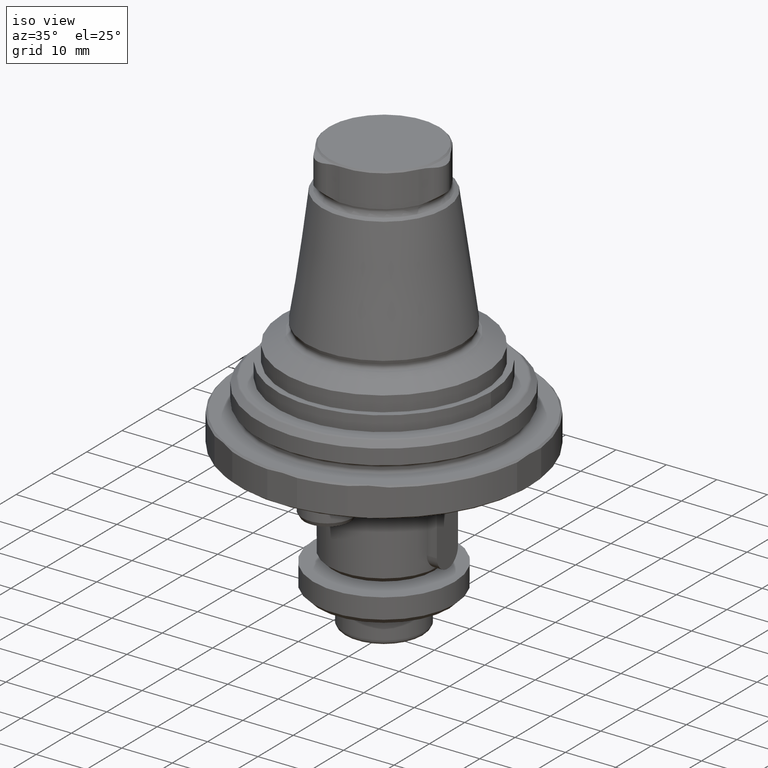
[diagram: clean part render]
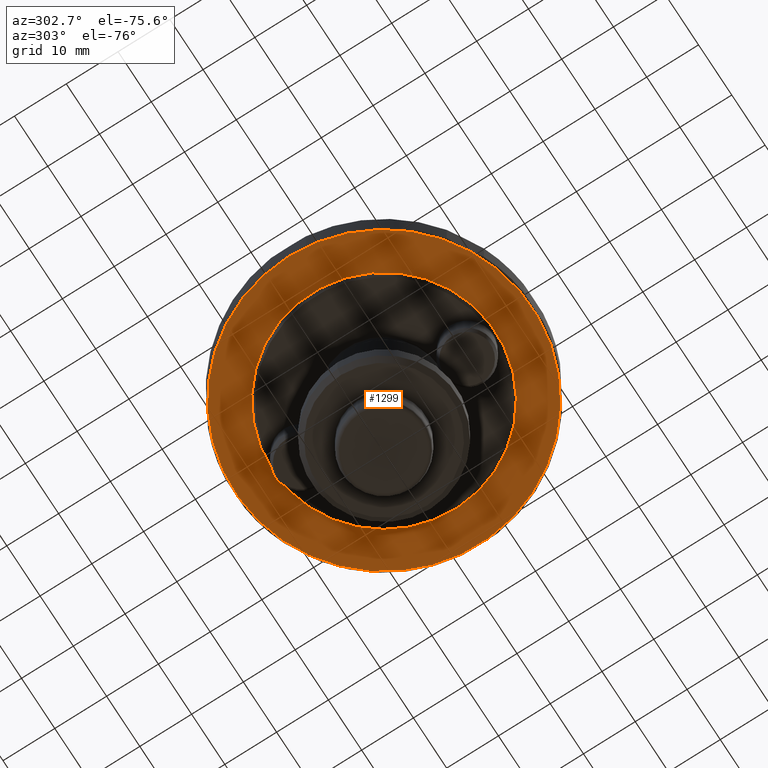
[diagram: tour spotlight — one face highlighted and labeled with its STEP entity id]
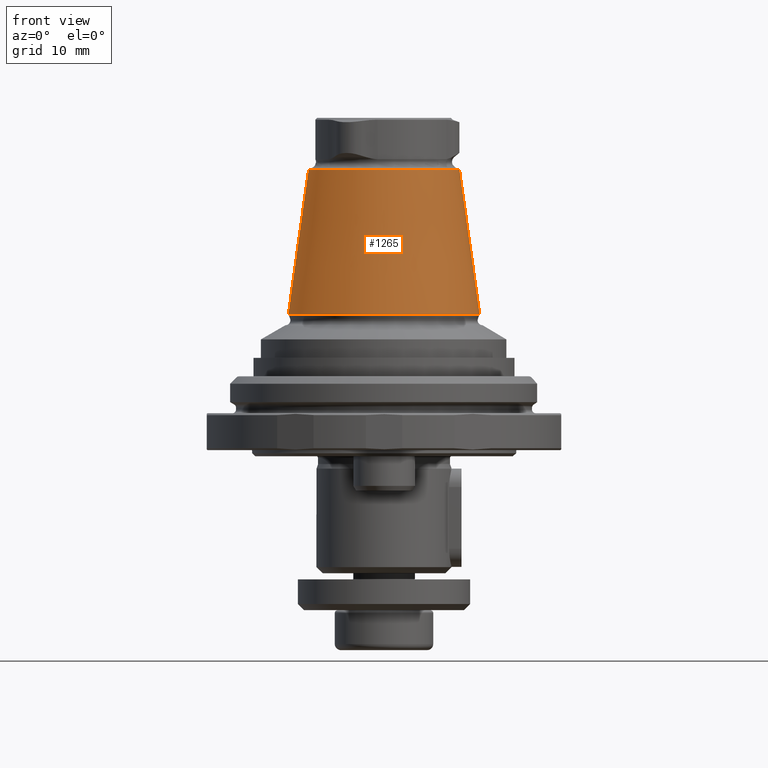
[diagram: tour spotlight — one face highlighted and labeled with its STEP entity id]
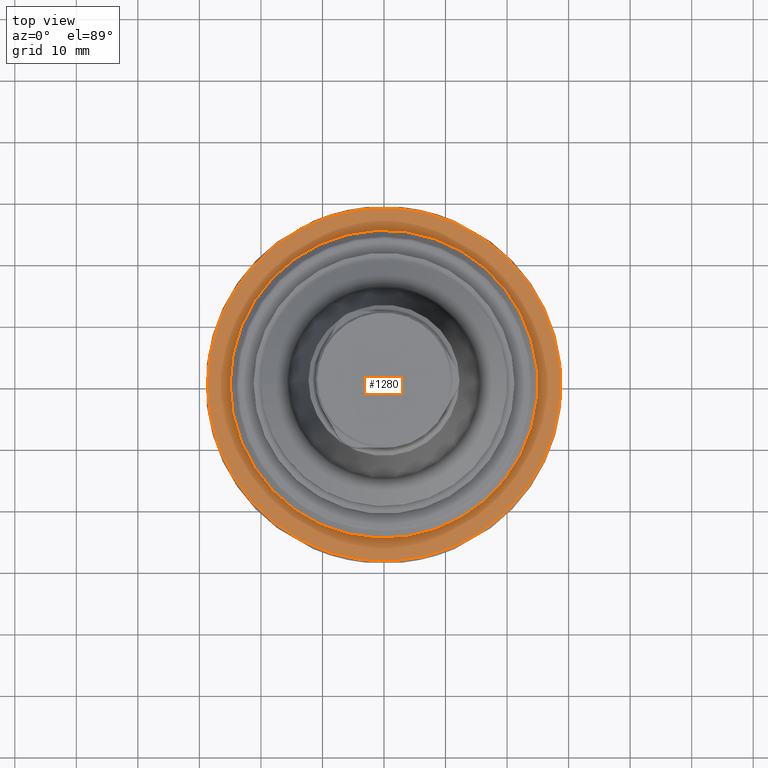
[diagram: tour spotlight — one face highlighted and labeled with its STEP entity id]
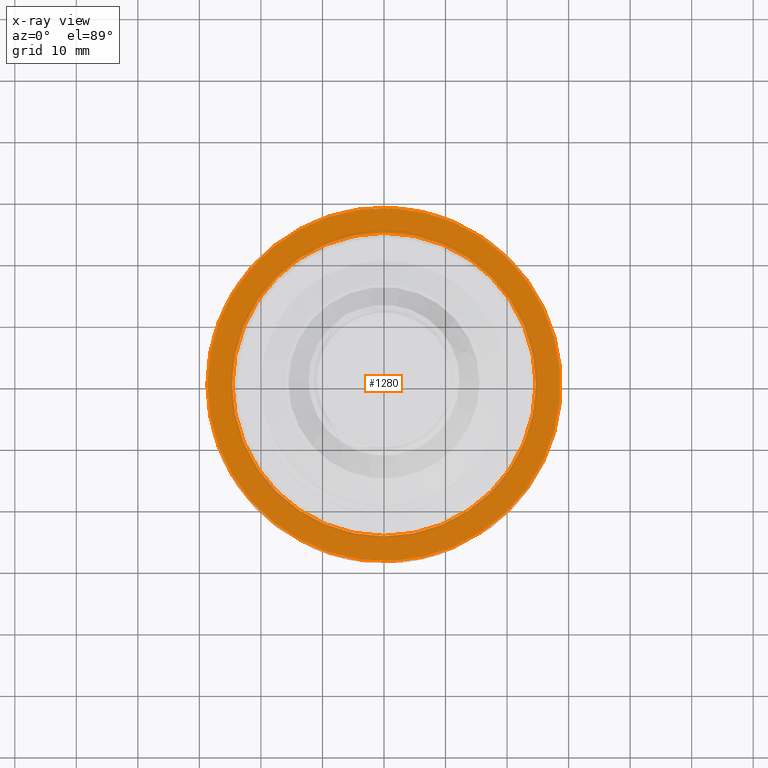
[diagram: x-ray of the same camera — body ghosted, this tour face saturated]
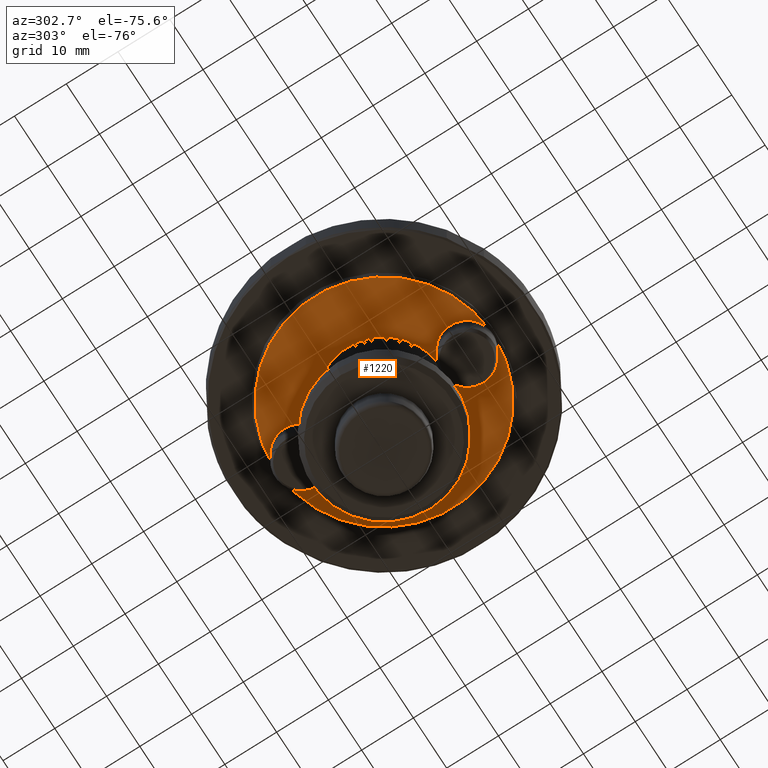
[diagram: tour spotlight — one face highlighted and labeled with its STEP entity id]
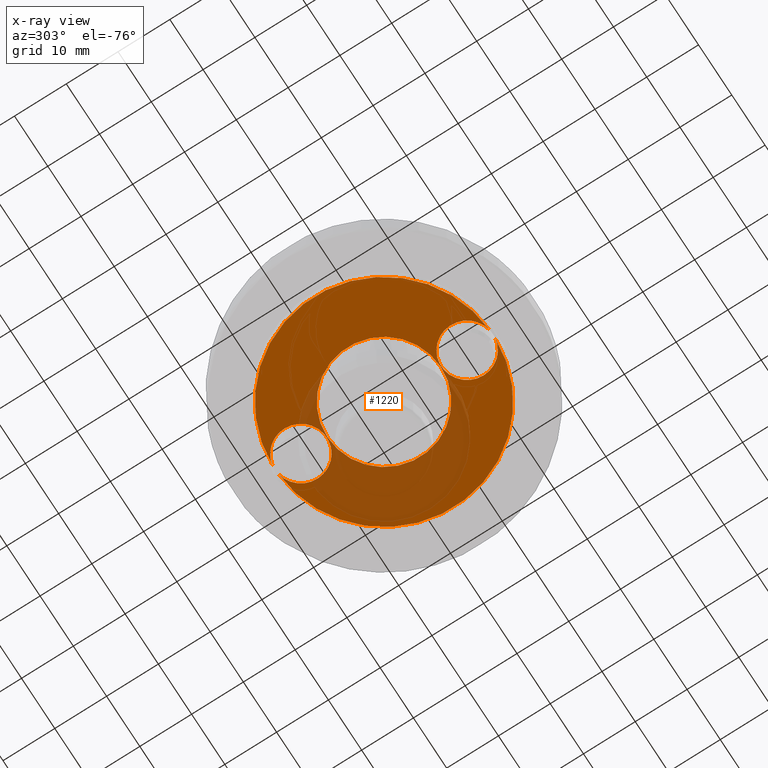
[diagram: x-ray of the same camera — body ghosted, this tour face saturated]
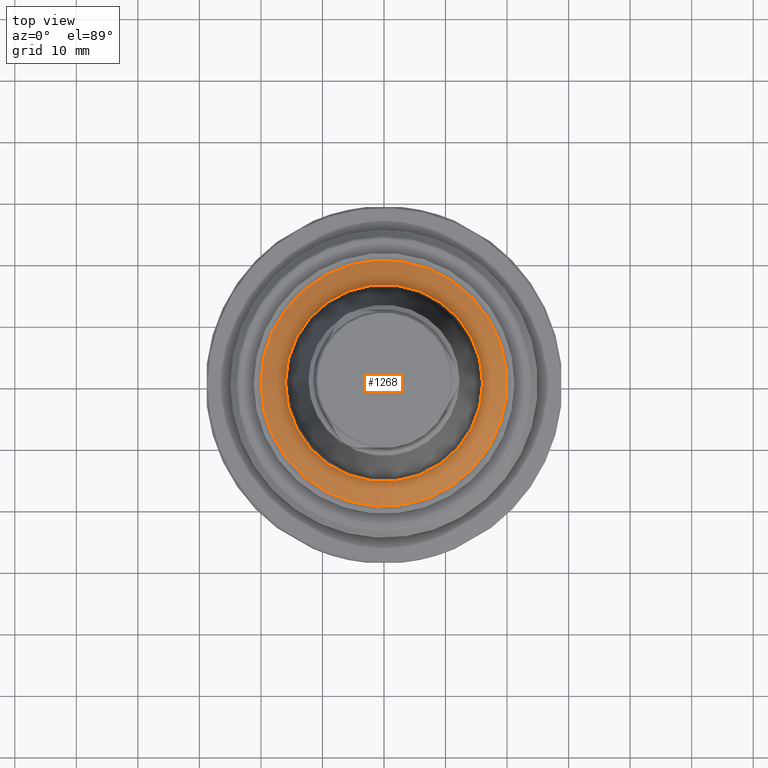
[diagram: tour spotlight — one face highlighted and labeled with its STEP entity id]
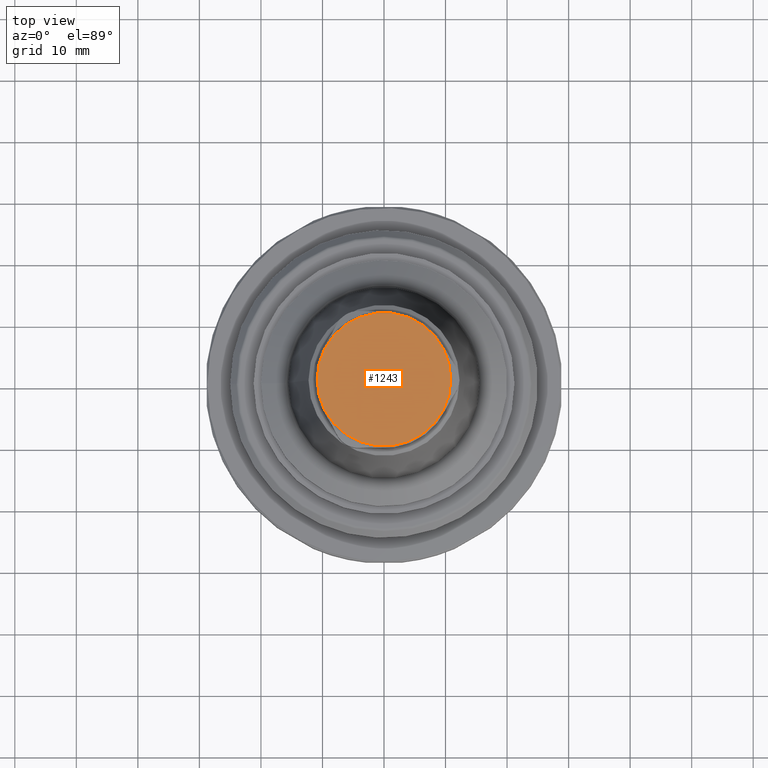
[diagram: tour spotlight — one face highlighted and labeled with its STEP entity id]
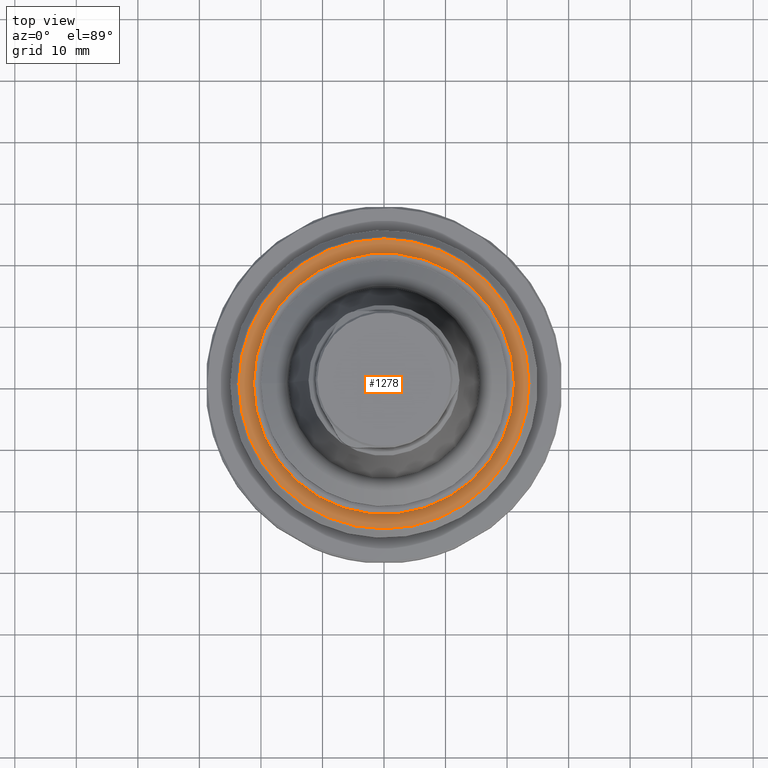
[diagram: tour spotlight — one face highlighted and labeled with its STEP entity id]
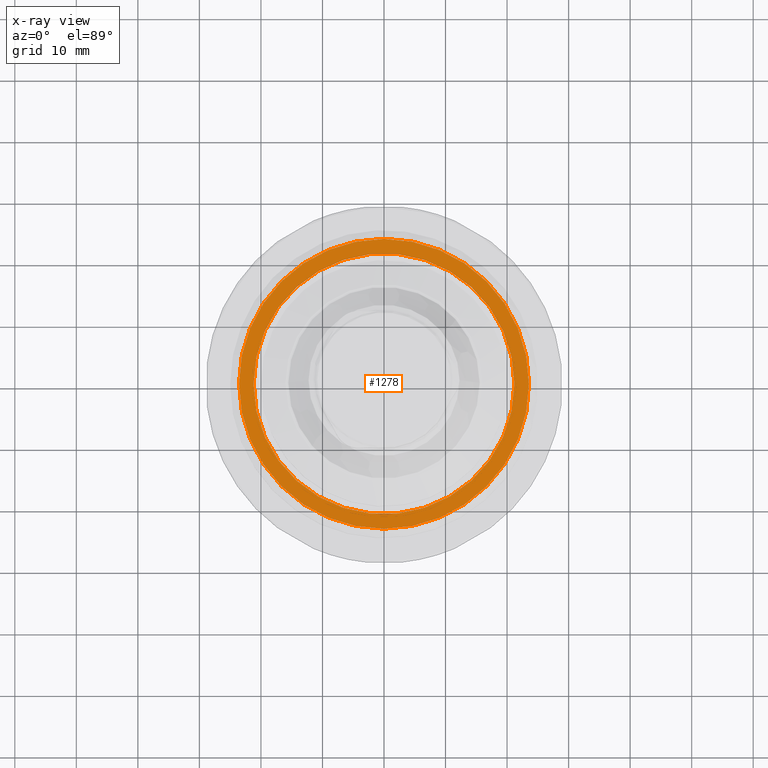
[diagram: x-ray of the same camera — body ghosted, this tour face saturated]
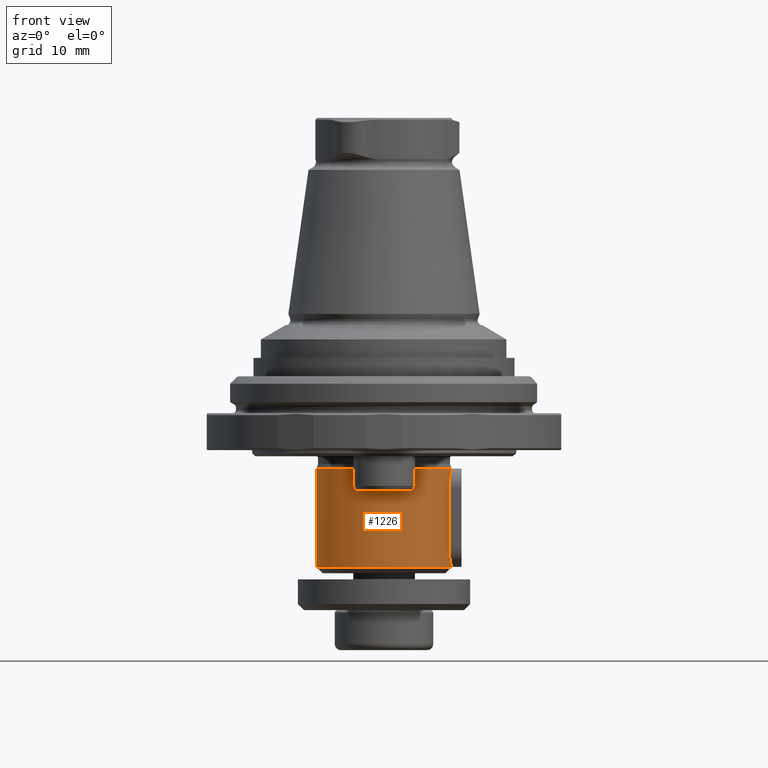
[diagram: tour spotlight — one face highlighted and labeled with its STEP entity id]
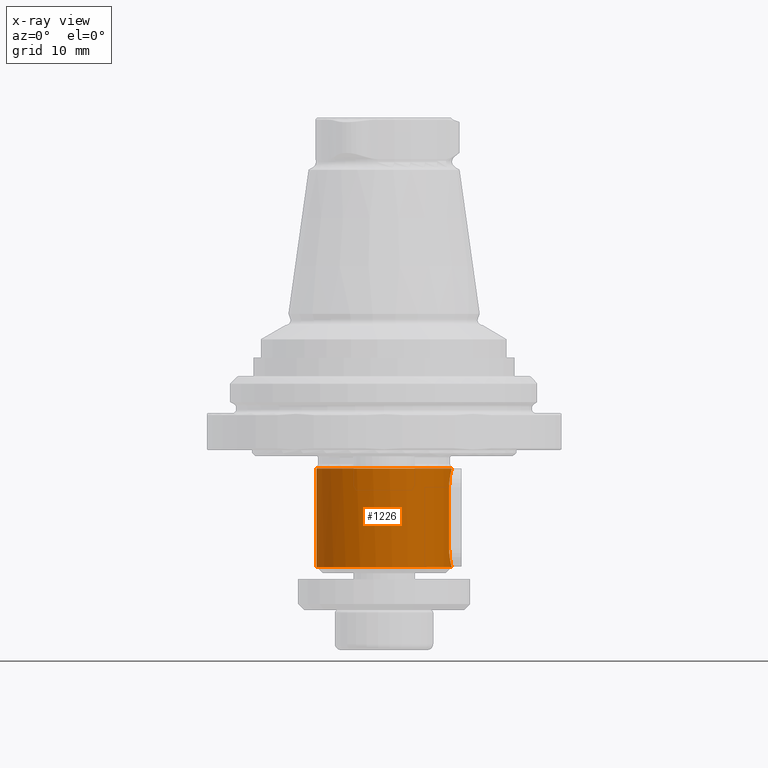
[diagram: x-ray of the same camera — body ghosted, this tour face saturated]
A machine part: a face-by-face anatomy tour. The part has 92 B-rep faces; the first image is the clean iso view, then the 8 largest visible faces are spotlighted one at a time (largest first), each with its STEP entity span.

Face 1 — auxiliary view, entity #1299. In plain terms, the highlighted planar face has unit normal (-0, -0, 1).
Definition (entity closure, byte-faithful):
#168=PLANE('',#1481);
#521=ORIENTED_EDGE('',*,*,#546,.F.);
#522=ORIENTED_EDGE('',*,*,#700,.T.);
#546=EDGE_CURVE('',#714,#714,#835,.F.);
#700=EDGE_CURVE('',#823,#823,#904,.T.);
#714=VERTEX_POINT('',#1908);
#823=VERTEX_POINT('',#2393);
#835=CIRCLE('',#1331,21.5);
#904=CIRCLE('',#1480,28.7);
#1032=EDGE_LOOP('',(#521));
#1033=EDGE_LOOP('',(#522));
#1167=FACE_BOUND('',#1032,.T.);
#1168=FACE_BOUND('',#1033,.T.);
#1299=ADVANCED_FACE('',(#1167,#1168),#168,.F.);
#1331=AXIS2_PLACEMENT_3D('',#1907,#1518,#1519);
#1480=AXIS2_PLACEMENT_3D('',#2392,#1857,#1858);
#1481=AXIS2_PLACEMENT_3D('',#2394,#1859,#1860);
#1518=DIRECTION('',(-1.22464605849178E-16,-1.04225259501902E-17,1.));
#1519=DIRECTION('',(1.,0.,1.22464605849178E-16));
#1857=DIRECTION('',(1.22464605849178E-16,1.04225259501902E-17,-1.));
#1858=DIRECTION('',(-1.,-5.54667823983524E-32,-1.22464605849178E-16));
#1859=DIRECTION('',(-1.22464605849178E-16,-1.04225259501902E-17,1.));
#1860=DIRECTION('',(1.,5.54667823983524E-32,1.22464605849178E-16));
#1907=CARTESIAN_POINT('',(1.20510757117972E-15,7.82697929398972E-31,-7.00000000000001));
#1908=CARTESIAN_POINT('',(21.5,7.82697929398972E-31,-7.00000000000001));
#2392=CARTESIAN_POINT('',(6.23473245107057E-15,1.56337889252854E-16,-7.00000000000002));
#2393=CARTESIAN_POINT('',(-28.7,1.56337889252853E-16,-7.00000000000002));
#2394=CARTESIAN_POINT('',(-28.7,1.56337889252853E-16,-7.00000000000002));

Face 2 — front view, entity #1265. In plain terms, the highlighted conical surface has half-angle 7.95 deg.
Definition (entity closure, byte-faithful):
#194=CONICAL_SURFACE('',#1414,15.5400379337869,0.13875367553355);
#391=ORIENTED_EDGE('',*,*,#635,.T.);
#392=ORIENTED_EDGE('',*,*,#636,.F.);
#635=EDGE_CURVE('',#774,#774,#871,.T.);
#636=EDGE_CURVE('',#775,#775,#872,.T.);
#774=VERTEX_POINT('',#2197);
#775=VERTEX_POINT('',#2200);
#871=CIRCLE('',#1413,12.2706905250473);
#872=CIRCLE('',#1415,15.5400379337869);
#980=EDGE_LOOP('',(#391));
#981=EDGE_LOOP('',(#392));
#1115=FACE_BOUND('',#980,.T.);
#1116=FACE_BOUND('',#981,.T.);
#1265=ADVANCED_FACE('',(#1115,#1116),#194,.T.);
#1413=AXIS2_PLACEMENT_3D('',#2196,#1707,#1708);
#1414=AXIS2_PLACEMENT_3D('',#2198,#1709,#1710);
#1415=AXIS2_PLACEMENT_3D('',#2199,#1711,#1712);
#1707=DIRECTION('',(2.49783760049311E-16,-7.79579225983866E-33,-1.));
#1708=DIRECTION('',(-1.,6.12303176911188E-17,-2.4978376004931E-16));
#1709=DIRECTION('',(2.49783760049311E-16,-7.79579225983866E-33,-1.));
#1710=DIRECTION('',(-1.,6.12303176911188E-17,-2.4978376004931E-16));
#1711=DIRECTION('',(2.49783760049311E-16,-7.79579225983866E-33,-1.));
#1712=DIRECTION('',(-1.,6.12303176911188E-17,-2.4978376004931E-16));
#2196=CARTESIAN_POINT('',(-3.23288072241349E-15,7.12886057881911E-31,38.549));
#2197=CARTESIAN_POINT('',(-12.2706905250473,7.51338279138048E-16,38.549));
#2198=CARTESIAN_POINT('',(2.61476548875585E-15,5.30380057242361E-31,15.1381657247255));
#2199=CARTESIAN_POINT('',(2.61476548875585E-15,5.30380057242361E-31,15.1381657247255));
#2200=CARTESIAN_POINT('',(-15.5400379337869,9.51521459617813E-16,15.1381657247255));

Face 3 — top view, entity #1280. An x-ray twin of the same camera follows (body ghosted, this face saturated) — the face is partly hidden behind the body. In plain terms, the highlighted planar face has unit normal (0, 0, -1).
Definition (entity closure, byte-faithful):
#159=PLANE('',#1444);
#421=ORIENTED_EDGE('',*,*,#650,.T.);
#422=ORIENTED_EDGE('',*,*,#651,.F.);
#650=EDGE_CURVE('',#789,#789,#886,.T.);
#651=EDGE_CURVE('',#790,#790,#887,.T.);
#789=VERTEX_POINT('',#2242);
#790=VERTEX_POINT('',#2245);
#886=CIRCLE('',#1443,24.65);
#887=CIRCLE('',#1445,28.7);
#1010=EDGE_LOOP('',(#421));
#1011=EDGE_LOOP('',(#422));
#1145=FACE_BOUND('',#1010,.T.);
#1146=FACE_BOUND('',#1011,.T.);
#1280=ADVANCED_FACE('',(#1145,#1146),#159,.F.);
#1443=AXIS2_PLACEMENT_3D('',#2241,#1767,#1768);
#1444=AXIS2_PLACEMENT_3D('',#2243,#1769,#1770);
#1445=AXIS2_PLACEMENT_3D('',#2244,#1771,#1772);
#1767=DIRECTION('',(1.22464605849178E-16,1.04225259501902E-17,-1.));
#1768=DIRECTION('',(-1.,-5.54667823983524E-32,-1.22464605849178E-16));
#1769=DIRECTION('',(1.22464605849178E-16,1.04225259501902E-17,-1.));
#1770=DIRECTION('',(-1.,-5.54667823983524E-32,-1.22464605849178E-16));
#1771=DIRECTION('',(1.22464605849178E-16,1.04225259501902E-17,-1.));
#1772=DIRECTION('',(-1.,-5.54667823983524E-32,-1.22464605849178E-16));
#2241=CARTESIAN_POINT('',(5.4999448159755E-15,9.38027335517129E-17,-1.00000000000002));
#2242=CARTESIAN_POINT('',(-24.65,9.38027335517115E-17,-1.00000000000002));
#2243=CARTESIAN_POINT('',(-24.65,9.38027335517115E-17,-1.00000000000002));
#2244=CARTESIAN_POINT('',(5.4999448159755E-15,9.38027335517129E-17,-1.00000000000002));
#2245=CARTESIAN_POINT('',(-28.7,9.38027335517113E-17,-1.00000000000002));

Face 4 — auxiliary view, entity #1220. An x-ray twin of the same camera follows (body ghosted, this face saturated) — the face is partly hidden behind the body. In plain terms, the highlighted planar face has unit normal (0, 0, -1).
Definition (entity closure, byte-faithful):
#146=PLANE('',#1334);
#214=ORIENTED_EDGE('',*,*,#547,.F.);
#215=ORIENTED_EDGE('',*,*,#548,.F.);
#216=ORIENTED_EDGE('',*,*,#542,.T.);
#217=ORIENTED_EDGE('',*,*,#549,.F.);
#218=ORIENTED_EDGE('',*,*,#544,.T.);
#542=EDGE_CURVE('',#710,#711,#831,.T.);
#544=EDGE_CURVE('',#713,#712,#833,.T.);
#547=EDGE_CURVE('',#715,#715,#836,.F.);
#548=EDGE_CURVE('',#710,#712,#837,.T.);
#549=EDGE_CURVE('',#713,#711,#838,.T.);
#710=VERTEX_POINT('',#1899);
#711=VERTEX_POINT('',#1900);
#712=VERTEX_POINT('',#1902);
#713=VERTEX_POINT('',#1904);
#715=VERTEX_POINT('',#1911);
#831=CIRCLE('',#1326,21.);
#833=CIRCLE('',#1328,21.);
#836=CIRCLE('',#1333,10.9418572032223);
#837=CIRCLE('',#1335,5.);
#838=CIRCLE('',#1336,5.);
#919=EDGE_LOOP('',(#214));
#920=EDGE_LOOP('',(#215,#216,#217,#218));
#1054=FACE_BOUND('',#919,.T.);
#1055=FACE_BOUND('',#920,.T.);
#1220=ADVANCED_FACE('',(#1054,#1055),#146,.T.);
#1326=AXIS2_PLACEMENT_3D('',#1898,#1508,#1509);
#1328=AXIS2_PLACEMENT_3D('',#1903,#1512,#1513);
#1333=AXIS2_PLACEMENT_3D('',#1910,#1522,#1523);
#1334=AXIS2_PLACEMENT_3D('',#1912,#1524,#1525);
#1335=AXIS2_PLACEMENT_3D('',#1913,#1526,#1527);
#1336=AXIS2_PLACEMENT_3D('',#1914,#1528,#1529);
#1508=DIRECTION('',(1.22464605849178E-16,2.73472351077882E-63,-1.));
#1509=DIRECTION('',(4.31408307542741E-32,1.,5.28322483432827E-48));
#1512=DIRECTION('',(1.22464605849178E-16,2.73472351077882E-63,-1.));
#1513=DIRECTION('',(4.31408307542741E-32,1.,5.28322483432827E-48));
#1522=DIRECTION('',(-1.22464605849178E-16,-2.73472351077882E-63,1.));
#1523=DIRECTION('',(-4.31408307542741E-32,-1.,-5.28322483432827E-48));
#1524=DIRECTION('',(1.22464605849178E-16,2.73472351077882E-63,-1.));
#1525=DIRECTION('',(4.31408307542741E-32,1.,5.28322483432827E-48));
#1526=DIRECTION('',(1.22464605849178E-16,2.73472351077882E-63,-1.));
#1527=DIRECTION('',(-1.,4.34344886343374E-17,-1.22464605849178E-16));
#1528=DIRECTION('',(1.22464605849178E-16,2.73472351077882E-63,-1.));
#1529=DIRECTION('',(1.,-4.34344886343374E-17,1.22464605849178E-16));
#1898=CARTESIAN_POINT('',(1.32757217702889E-15,7.82697929398972E-31,-8.00000000000001));
#1899=CARTESIAN_POINT('',(0.806656294665514,20.9845015576324,-8.00000000000001));
#1900=CARTESIAN_POINT('',(0.806656294665447,-20.9845015576324,-8.00000000000001));
#1902=CARTESIAN_POINT('',(-0.806656294665511,20.9845015576324,-8.00000000000001));
#1903=CARTESIAN_POINT('',(1.32757217702889E-15,7.82697929398972E-31,-8.00000000000001));
#1904=CARTESIAN_POINT('',(-0.806656294665444,-20.9845015576324,-8.00000000000001));
#1910=CARTESIAN_POINT('',(1.32757217702889E-15,7.82697929398972E-31,-8.00000000000001));
#1911=CARTESIAN_POINT('',(1.32757217702889E-15,-10.9418572032223,-8.00000000000001));
#1912=CARTESIAN_POINT('',(1.32757217702889E-15,11.9,-8.00000000000001));
#1913=CARTESIAN_POINT('',(1.32757217702889E-15,16.05,-8.00000000000001));
#1914=CARTESIAN_POINT('',(1.32757217702889E-15,-16.05,-8.00000000000001));

Face 5 — top view, entity #1268. In plain terms, the highlighted conical surface has half-angle 60 deg.
Definition (entity closure, byte-faithful):
#196=CONICAL_SURFACE('',#1420,20.,1.0471975511966);
#397=ORIENTED_EDGE('',*,*,#638,.T.);
#398=ORIENTED_EDGE('',*,*,#639,.F.);
#638=EDGE_CURVE('',#777,#777,#874,.T.);
#639=EDGE_CURVE('',#778,#778,#875,.T.);
#777=VERTEX_POINT('',#2206);
#778=VERTEX_POINT('',#2209);
#874=CIRCLE('',#1419,16.0162831425916);
#875=CIRCLE('',#1421,20.);
#986=EDGE_LOOP('',(#397));
#987=EDGE_LOOP('',(#398));
#1121=FACE_BOUND('',#986,.T.);
#1122=FACE_BOUND('',#987,.T.);
#1268=ADVANCED_FACE('',(#1121,#1122),#196,.T.);
#1419=AXIS2_PLACEMENT_3D('',#2205,#1719,#1720);
#1420=AXIS2_PLACEMENT_3D('',#2207,#1721,#1722);
#1421=AXIS2_PLACEMENT_3D('',#2208,#1723,#1724);
#1719=DIRECTION('',(2.49783760049311E-16,-7.79579225983866E-33,-1.));
#1720=DIRECTION('',(-1.,6.12303176911188E-17,-2.4978376004931E-16));
#1721=DIRECTION('',(2.49783760049311E-16,-7.79579225983866E-33,-1.));
#1722=DIRECTION('',(-1.,6.12303176911188E-17,-2.4978376004931E-16));
#1723=DIRECTION('',(2.49783760049311E-16,-7.79579225983866E-33,-1.));
#1724=DIRECTION('',(-1.,6.12303176911188E-17,-2.4978376004931E-16));
#2205=CARTESIAN_POINT('',(3.07289261892607E-15,5.1608183411249E-31,13.3040707856479));
#2206=CARTESIAN_POINT('',(-16.0162831425916,9.80682105051795E-16,13.3040707856479));
#2207=CARTESIAN_POINT('',(3.64739526703948E-15,4.98151511914861E-31,11.0040707856479));
#2208=CARTESIAN_POINT('',(3.64739526703948E-15,4.98151511914861E-31,11.0040707856479));
#2209=CARTESIAN_POINT('',(-20.,1.22460635382238E-15,11.0040707856479));

Face 6 — top view, entity #1243. In plain terms, the highlighted planar face has unit normal (-0, 0, 1).
Definition (entity closure, byte-faithful):
#156=PLANE('',#1377);
#290=ORIENTED_EDGE('',*,*,#585,.F.);
#585=EDGE_CURVE('',#742,#742,#857,.T.);
#742=VERTEX_POINT('',#2016);
#857=CIRCLE('',#1378,10.85);
#955=EDGE_LOOP('',(#290));
#1090=FACE_BOUND('',#955,.T.);
#1243=ADVANCED_FACE('',(#1090),#156,.T.);
#1377=AXIS2_PLACEMENT_3D('',#2014,#1623,#1624);
#1378=AXIS2_PLACEMENT_3D('',#2015,#1625,#1626);
#1623=DIRECTION('',(-2.49783760049311E-16,7.79579225983866E-33,1.));
#1624=DIRECTION('',(1.,-6.12303176911188E-17,2.4978376004931E-16));
#1625=DIRECTION('',(2.49783760049311E-16,-7.79579225983866E-33,-1.));
#1626=DIRECTION('',(-1.,6.12303176911188E-17,-2.4978376004931E-16));
#2014=CARTESIAN_POINT('',(-10.85,6.6434894694864E-16,47.));
#2015=CARTESIAN_POINT('',(-5.34380327859022E-15,7.78768298269808E-31,47.));
#2016=CARTESIAN_POINT('',(-10.85,6.6434894694864E-16,47.));

Face 7 — top view, entity #1278. An x-ray twin of the same camera follows (body ghosted, this face saturated) — the face is partly hidden behind the body. In plain terms, the highlighted planar face has unit normal (0, 0, -1).
Definition (entity closure, byte-faithful):
#158=PLANE('',#1441);
#417=ORIENTED_EDGE('',*,*,#649,.F.);
#418=ORIENTED_EDGE('',*,*,#648,.F.);
#648=EDGE_CURVE('',#787,#787,#884,.T.);
#649=EDGE_CURVE('',#788,#788,#885,.T.);
#787=VERTEX_POINT('',#2235);
#788=VERTEX_POINT('',#2238);
#884=CIRCLE('',#1438,23.5524710292422);
#885=CIRCLE('',#1440,21.2);
#1006=EDGE_LOOP('',(#417));
#1007=EDGE_LOOP('',(#418));
#1141=FACE_BOUND('',#1006,.T.);
#1142=FACE_BOUND('',#1007,.T.);
#1278=ADVANCED_FACE('',(#1141,#1142),#158,.F.);
#1438=AXIS2_PLACEMENT_3D('',#2234,#1757,#1758);
#1440=AXIS2_PLACEMENT_3D('',#2237,#1761,#1762);
#1441=AXIS2_PLACEMENT_3D('',#2239,#1763,#1764);
#1757=DIRECTION('',(1.22464605849178E-16,1.04225259501902E-17,-1.));
#1758=DIRECTION('',(-1.,-5.54667823983524E-32,-1.22464605849178E-16));
#1761=DIRECTION('',(-1.14647711386535E-16,5.86246862035713E-17,1.));
#1762=DIRECTION('',(1.,-6.12303176911188E-17,1.14647711386535E-16));
#1763=DIRECTION('',(1.22464605849178E-16,1.04225259501902E-17,-1.));
#1764=DIRECTION('',(-1.,-5.54667823983524E-32,-1.22464605849178E-16));
#2234=CARTESIAN_POINT('',(4.76515718088043E-15,3.12675778505713E-17,4.99999999999999));
#2235=CARTESIAN_POINT('',(-23.5524710292422,3.126757785057E-17,4.99999999999999));
#2237=CARTESIAN_POINT('',(4.74170649749251E-15,7.81689446264289E-18,4.99999999999999));
#2238=CARTESIAN_POINT('',(21.2,-1.29026584058908E-15,4.99999999999999));
#2239=CARTESIAN_POINT('',(4.76515718088043E-15,3.12675778505713E-17,4.99999999999999));

Face 8 — front view, entity #1226. An x-ray twin of the same camera follows (body ghosted, this face saturated) — the face is partly hidden behind the body. In plain terms, the highlighted cylindrical surface (bore or boss wall) has radius 11 mm, axis along (0, 0, -1).
Definition (entity closure, byte-faithful):
#20=B_SPLINE_CURVE_WITH_KNOTS('',3,(#1934,#1935,#1936,#1937,#1938),
 .UNSPECIFIED.,.F.,.F.,(4,1,4),(0.00471330700906608,0.00706717171519592,
0.00942103642132576),.UNSPECIFIED.);
#21=B_SPLINE_CURVE_WITH_KNOTS('',3,(#1939,#1940,#1941,#1942,#1943),
 .UNSPECIFIED.,.F.,.F.,(4,1,4),(0.,0.00235665350453304,0.00471330700906608),
 .UNSPECIFIED.);
#22=B_SPLINE_CURVE_WITH_KNOTS('',3,(#1951,#1952,#1953,#1954,#1955),
 .UNSPECIFIED.,.F.,.F.,(4,1,4),(0.00471330700906658,0.00706717171519618,
0.00942103642132577),.UNSPECIFIED.);
#23=B_SPLINE_CURVE_WITH_KNOTS('',3,(#1958,#1959,#1960,#1961,#1962),
 .UNSPECIFIED.,.F.,.F.,(4,1,4),(0.,0.00235665350453329,0.00471330700906658),
 .UNSPECIFIED.);
#68=LINE('',#1949,#109);
#69=LINE('',#1956,#110);
#109=VECTOR('',#1554,1000.);
#110=VECTOR('',#1557,1000.);
#234=ORIENTED_EDGE('',*,*,#562,.T.);
#235=ORIENTED_EDGE('',*,*,#561,.T.);
#236=ORIENTED_EDGE('',*,*,#558,.T.);
#237=ORIENTED_EDGE('',*,*,#552,.F.);
#238=ORIENTED_EDGE('',*,*,#557,.T.);
#239=ORIENTED_EDGE('',*,*,#563,.T.);
#240=ORIENTED_EDGE('',*,*,#564,.T.);
#241=ORIENTED_EDGE('',*,*,#551,.T.);
#551=EDGE_CURVE('',#717,#717,#840,.T.);
#552=EDGE_CURVE('',#718,#718,#841,.T.);
#557=EDGE_CURVE('',#718,#723,#20,.T.);
#558=EDGE_CURVE('',#720,#718,#21,.T.);
#561=EDGE_CURVE('',#724,#720,#68,.T.);
#562=EDGE_CURVE('',#717,#724,#22,.T.);
#563=EDGE_CURVE('',#723,#726,#69,.F.);
#564=EDGE_CURVE('',#726,#717,#23,.T.);
#717=VERTEX_POINT('',#1920);
#718=VERTEX_POINT('',#1923);
#720=VERTEX_POINT('',#1928);
#723=VERTEX_POINT('',#1933);
#724=VERTEX_POINT('',#1946);
#726=VERTEX_POINT('',#1957);
#840=CIRCLE('',#1340,11.);
#841=CIRCLE('',#1342,11.);
#929=EDGE_LOOP('',(#234,#235,#236,#237,#238,#239,#240,#241));
#1064=FACE_BOUND('',#929,.T.);
#1184=CYLINDRICAL_SURFACE('',#1347,11.);
#1226=ADVANCED_FACE('',(#1064),#1184,.T.);
#1340=AXIS2_PLACEMENT_3D('',#1919,#1536,#1537);
#1342=AXIS2_PLACEMENT_3D('',#1922,#1540,#1541);
#1347=AXIS2_PLACEMENT_3D('',#1950,#1555,#1556);
#1536=DIRECTION('',(1.22464605849178E-16,2.73472351077882E-63,-1.));
#1537=DIRECTION('',(4.31408307542741E-32,1.,5.28322483432827E-48));
#1540=DIRECTION('',(1.22464605849178E-16,2.73472351077882E-63,-1.));
#1541=DIRECTION('',(4.31408307542741E-32,1.,5.28322483432827E-48));
#1554=DIRECTION('',(1.22464605849178E-16,2.73472351077882E-63,-1.));
#1555=DIRECTION('',(1.22464605849178E-16,2.73472351077882E-63,-1.));
#1556=DIRECTION('',(4.31408307542741E-32,1.,5.28322483432827E-48));
#1557=DIRECTION('',(1.22464605849178E-16,2.73472351077882E-63,-1.));
#1919=CARTESIAN_POINT('',(1.57250138872725E-15,7.82697929398972E-31,-10.));
#1920=CARTESIAN_POINT('',(11.,4.97618866738981E-13,-10.));
#1922=CARTESIAN_POINT('',(3.5319350823141E-15,7.82697929398972E-31,-26.));
#1923=CARTESIAN_POINT('',(11.,1.39283253578085E-30,-26.));
#1928=CARTESIAN_POINT('',(10.5830052442584,3.,-23.));
#1933=CARTESIAN_POINT('',(10.5830052442584,-3.,-23.));
#1934=CARTESIAN_POINT('',(11.,1.40791542779901E-16,-26.));
#1935=CARTESIAN_POINT('',(11.,-0.786278921073355,-26.));
#1936=CARTESIAN_POINT('',(10.7954565252814,-2.34987771690037,-25.3441324698872));
#1937=CARTESIAN_POINT('',(10.5830052442584,-3.,-23.7962633870034));
#1938=CARTESIAN_POINT('',(10.5830052442584,-3.,-23.));
#1939=CARTESIAN_POINT('',(10.5830052442584,3.,-23.));
#1940=CARTESIAN_POINT('',(10.5830052442584,3.,-23.7971741091531));
#1941=CARTESIAN_POINT('',(10.7958858936122,2.34722687798369,-25.34586142898));
#1942=CARTESIAN_POINT('',(11.,0.787210484129569,-26.));
#1943=CARTESIAN_POINT('',(11.,1.40791542779901E-16,-26.));
#1946=CARTESIAN_POINT('',(10.5830052442584,3.,-13.));
#1949=CARTESIAN_POINT('',(10.5830052442584,3.,-47.9959292143521));
#1950=CARTESIAN_POINT('',(6.22565788383615E-15,7.82697929398972E-31,-47.9959292143521));
#1951=CARTESIAN_POINT('',(11.,4.97161846426166E-13,-10.));
#1952=CARTESIAN_POINT('',(11.,0.78627892107378,-10.0000000000001));
#1953=CARTESIAN_POINT('',(10.7954565252814,2.34987771690051,-10.655867530113));
#1954=CARTESIAN_POINT('',(10.5830052442584,3.,-12.2037366129967));
#1955=CARTESIAN_POINT('',(10.5830052442584,3.,-13.));
#1956=CARTESIAN_POINT('',(10.5830052442584,-3.,-47.9959292143521));
#1957=CARTESIAN_POINT('',(10.5830052442584,-3.,-13.));
#1958=CARTESIAN_POINT('',(10.5830052442584,-3.,-13.));
#1959=CARTESIAN_POINT('',(10.5830052442584,-3.,-12.2028258908468));
#1960=CARTESIAN_POINT('',(10.7958858936123,-2.34722687798355,-10.6541385710198));
#1961=CARTESIAN_POINT('',(11.,-0.787210484129164,-9.99999999999987));
#1962=CARTESIAN_POINT('',(11.,4.97161846426166E-13,-10.));